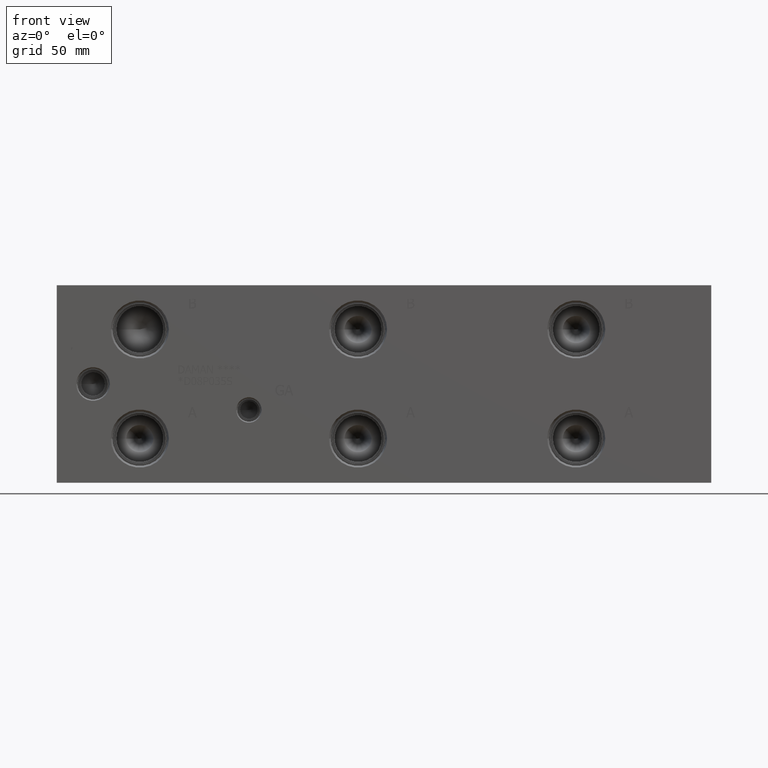
[diagram: clean part render]
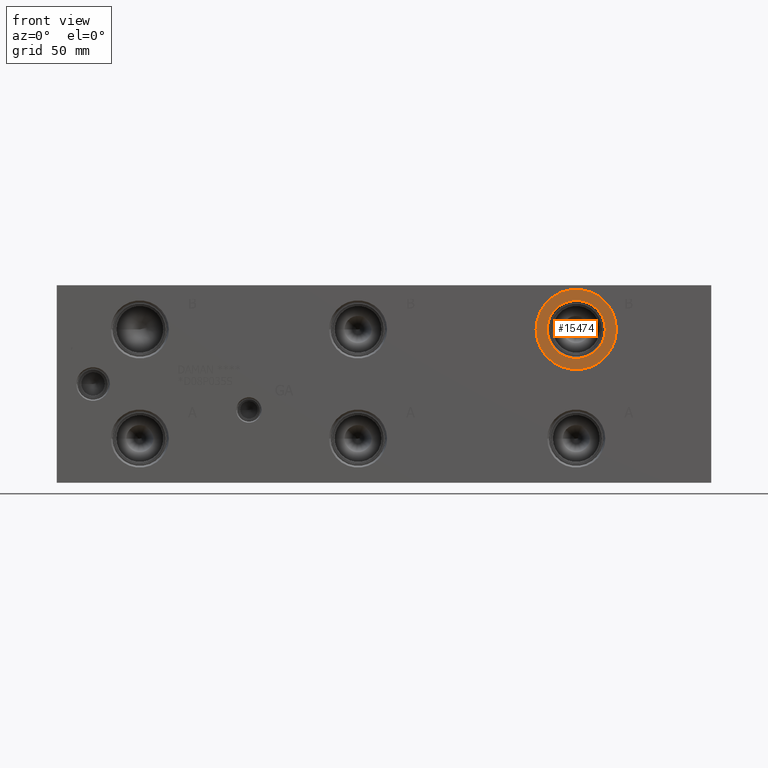
[diagram: same view with one face highlighted and labeled with its STEP entity id]
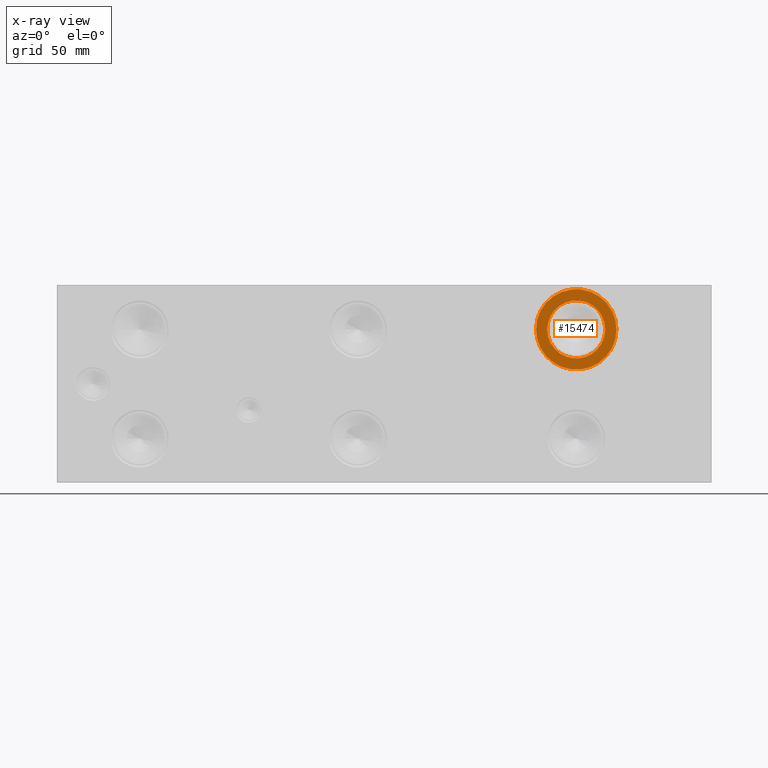
[diagram: x-ray of the same camera — body ghosted, the highlighted face saturated]
A machine part, front view. The second image highlights one B-rep face of the part: STEP entity #15474.
The next image is the same camera in x-ray: the body ghosted, the highlighted face saturated — about 0% of this face is hidden behind the body in this view.
In plain terms, the highlighted planar face has unit normal (0, -1, 0).
Its self-contained STEP definition (entity closure, byte-faithful):
#589=CIRCLE('',#16279,24.5618);
#590=CIRCLE('',#16280,24.5618);
#591=CIRCLE('',#16281,17.7546);
#1364=FACE_BOUND('',#2955,.T.);
#2054=FACE_OUTER_BOUND('',#2954,.T.);
#2954=EDGE_LOOP('',(#12882,#12883));
#2955=EDGE_LOOP('',(#12884));
#7030=VERTEX_POINT('',#26239);
#7031=VERTEX_POINT('',#26240);
#7032=VERTEX_POINT('',#26243);
#9091=EDGE_CURVE('',#7030,#7031,#589,.T.);
#9092=EDGE_CURVE('',#7031,#7030,#590,.T.);
#9093=EDGE_CURVE('',#7032,#7032,#591,.T.);
#12882=ORIENTED_EDGE('',*,*,#9091,.T.);
#12883=ORIENTED_EDGE('',*,*,#9092,.T.);
#12884=ORIENTED_EDGE('',*,*,#9093,.F.);
#14300=PLANE('',#16278);
#15474=ADVANCED_FACE('',(#2054,#1364),#14300,.T.);
#16278=AXIS2_PLACEMENT_3D('',#26238,#19134,#19135);
#16279=AXIS2_PLACEMENT_3D('',#26241,#19136,#19137);
#16280=AXIS2_PLACEMENT_3D('',#26242,#19138,#19139);
#16281=AXIS2_PLACEMENT_3D('',#26244,#19140,#19141);
#19134=DIRECTION('center_axis',(0.,-1.,0.));
#19135=DIRECTION('ref_axis',(1.,0.,0.));
#19136=DIRECTION('center_axis',(0.,-1.,0.));
#19137=DIRECTION('ref_axis',(1.,0.,0.));
#19138=DIRECTION('center_axis',(0.,-1.,0.));
#19139=DIRECTION('ref_axis',(1.,0.,0.));
#19140=DIRECTION('center_axis',(0.,-1.,0.));
#19141=DIRECTION('ref_axis',(1.,0.,0.));
#26238=CARTESIAN_POINT('Origin',(317.5,0.7874,93.6752));
#26239=CARTESIAN_POINT('',(342.0618,0.7874,93.6752));
#26240=CARTESIAN_POINT('',(292.9382,0.7874,93.6752));
#26241=CARTESIAN_POINT('Origin',(317.5,0.7874,93.6752));
#26242=CARTESIAN_POINT('Origin',(317.5,0.7874,93.6752));
#26243=CARTESIAN_POINT('',(299.7454,0.7874,93.6752));
#26244=CARTESIAN_POINT('Origin',(317.5,0.7874,93.6752));